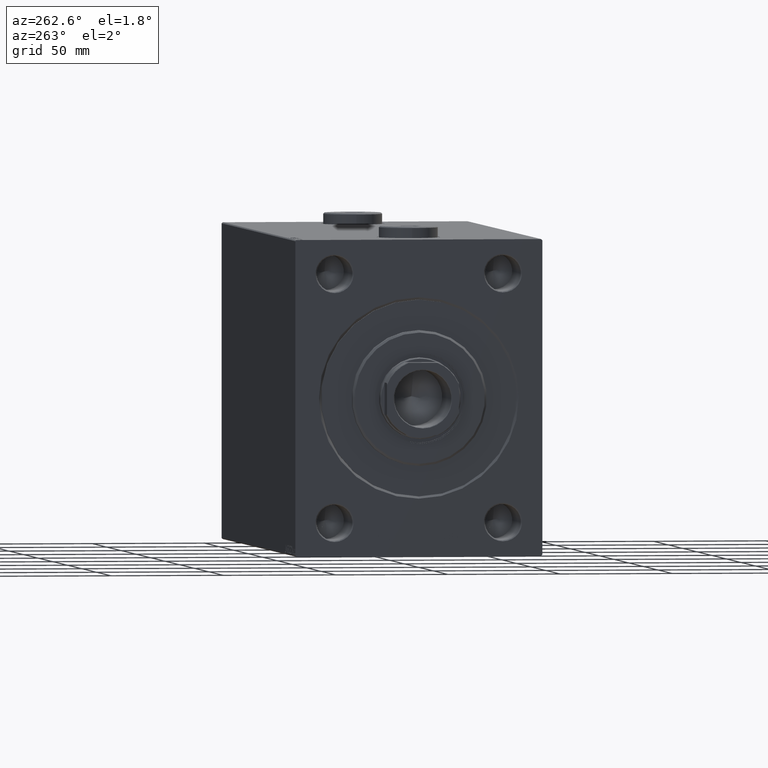
[diagram: clean part render]
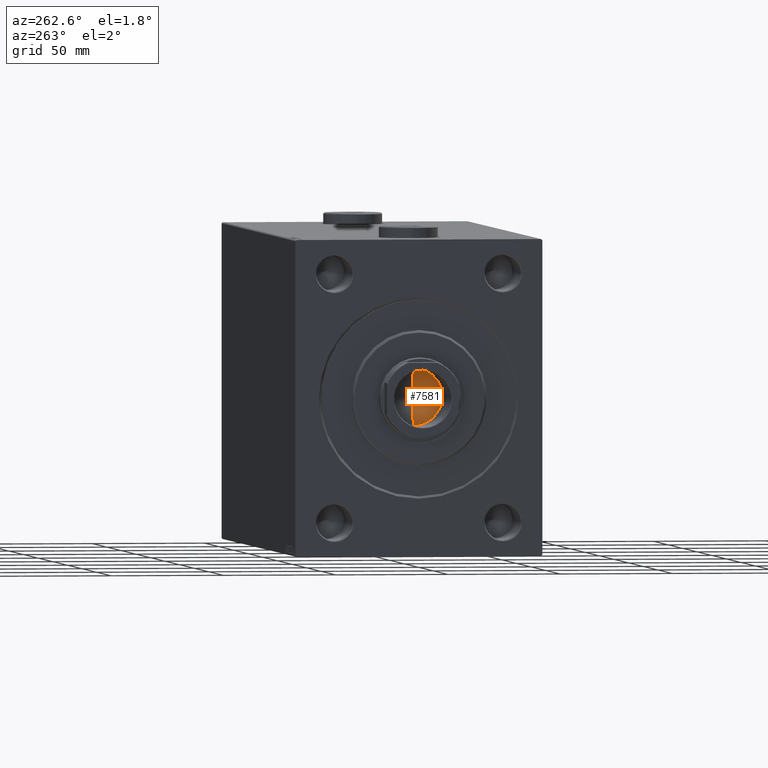
[diagram: same view with one face highlighted and labeled with its STEP entity id]
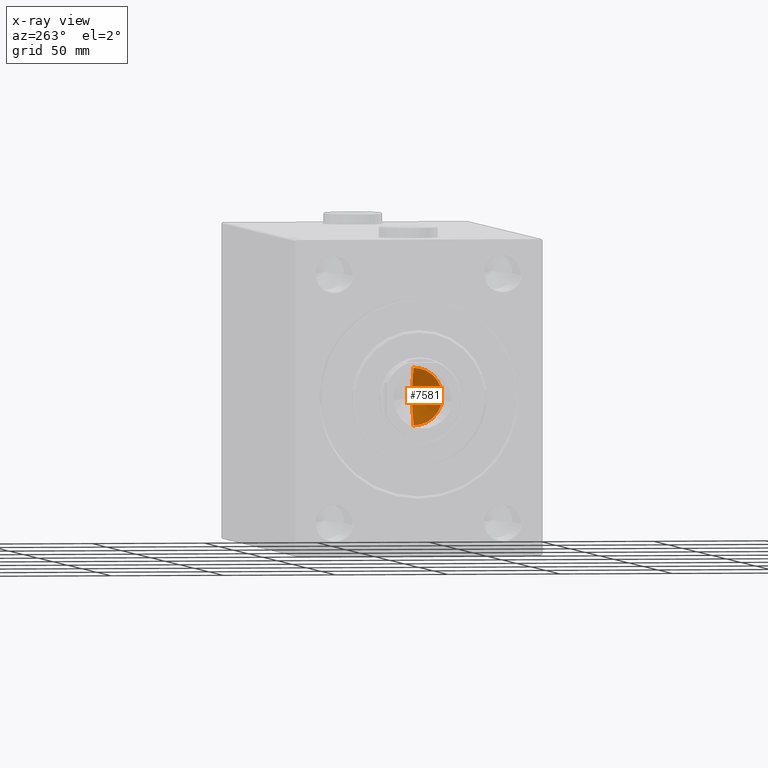
[diagram: x-ray of the same camera — body ghosted, the highlighted face saturated]
A machine part, auxiliary view. The second image highlights one B-rep face of the part: STEP entity #7581.
The next image is the same camera in x-ray: the body ghosted, the highlighted face saturated — about 0% of this face is hidden behind the body in this view.
In plain terms, the highlighted conical surface has half-angle 59 deg.
Its self-contained STEP definition (entity closure, byte-faithful):
#810 = DIRECTION ( 'NONE',  ( -0.000000000000000000, -0.000000000000000000, 1.000000000000000000 ) ) ;
#5098 = EDGE_CURVE ( 'NONE', #33118, #40188, #32866, .T. ) ;
#5346 = VECTOR ( 'NONE', #20844, 1000.000000000000000 ) ;
#6109 = CIRCLE ( 'NONE', #14912, 12.74999999999999467 ) ;
#7581 = ADVANCED_FACE ( 'NONE', ( #11208 ), #30733, .F. ) ;
#8155 = DIRECTION ( 'NONE',  ( 0.8571673007021118895, 0.000000000000000000, 0.5150380749100549327 ) ) ;
#10249 = LINE ( 'NONE', #24313, #5346 ) ;
#11208 = FACE_OUTER_BOUND ( 'NONE', #18011, .T. ) ;
#12900 = CARTESIAN_POINT ( 'NONE',  ( -1.026246296720136938E-14, 0.000000000000000000, 206.3390271073986071 ) ) ;
#13517 = EDGE_CURVE ( 'NONE', #23519, #40188, #6109, .T. ) ;
#14172 = ORIENTED_EDGE ( 'NONE', *, *, #13517, .T. ) ;
#14895 = DIRECTION ( 'NONE',  ( 1.000000000000000000, 0.000000000000000000, 0.000000000000000000 ) ) ;
#14912 = AXIS2_PLACEMENT_3D ( 'NONE', #28162, #28392, #42516 ) ;
#16236 = CARTESIAN_POINT ( 'NONE',  ( 12.74999999999999467, 0.000000000000000000, 214.0000000000000000 ) ) ;
#18011 = EDGE_LOOP ( 'NONE', ( #30240, #25036, #14172 ) ) ;
#18194 = AXIS2_PLACEMENT_3D ( 'NONE', #32464, #810, #14895 ) ;
#20844 = DIRECTION ( 'NONE',  ( -0.8571673007021118895, 1.049727191138618079E-16, 0.5150380749100549327 ) ) ;
#23519 = VERTEX_POINT ( 'NONE', #27598 ) ;
#24313 = CARTESIAN_POINT ( 'NONE',  ( -12.74999999999999467, 1.561424668912874519E-15, 214.0000000000000000 ) ) ;
#25036 = ORIENTED_EDGE ( 'NONE', *, *, #45083, .T. ) ;
#27598 = CARTESIAN_POINT ( 'NONE',  ( -12.74999999999999467, 1.561424668912874519E-15, 214.0000000000000000 ) ) ;
#28162 = CARTESIAN_POINT ( 'NONE',  ( 0.000000000000000000, 0.000000000000000000, 214.0000000000000000 ) ) ;
#28392 = DIRECTION ( 'NONE',  ( -0.000000000000000000, -0.000000000000000000, 1.000000000000000000 ) ) ;
#30240 = ORIENTED_EDGE ( 'NONE', *, *, #5098, .F. ) ;
#30733 = CONICAL_SURFACE ( 'NONE', #18194, 12.74999999999999467, 1.029744258676653645 ) ;
#32464 = CARTESIAN_POINT ( 'NONE',  ( 0.000000000000000000, 0.000000000000000000, 214.0000000000000000 ) ) ;
#32634 = CARTESIAN_POINT ( 'NONE',  ( 12.74999999999999467, 0.000000000000000000, 214.0000000000000000 ) ) ;
#32866 = LINE ( 'NONE', #32634, #40274 ) ;
#33118 = VERTEX_POINT ( 'NONE', #12900 ) ;
#40188 = VERTEX_POINT ( 'NONE', #16236 ) ;
#40274 = VECTOR ( 'NONE', #8155, 1000.000000000000000 ) ;
#42516 = DIRECTION ( 'NONE',  ( 1.000000000000000000, 0.000000000000000000, 0.000000000000000000 ) ) ;
#45083 = EDGE_CURVE ( 'NONE', #33118, #23519, #10249, .T. ) ;